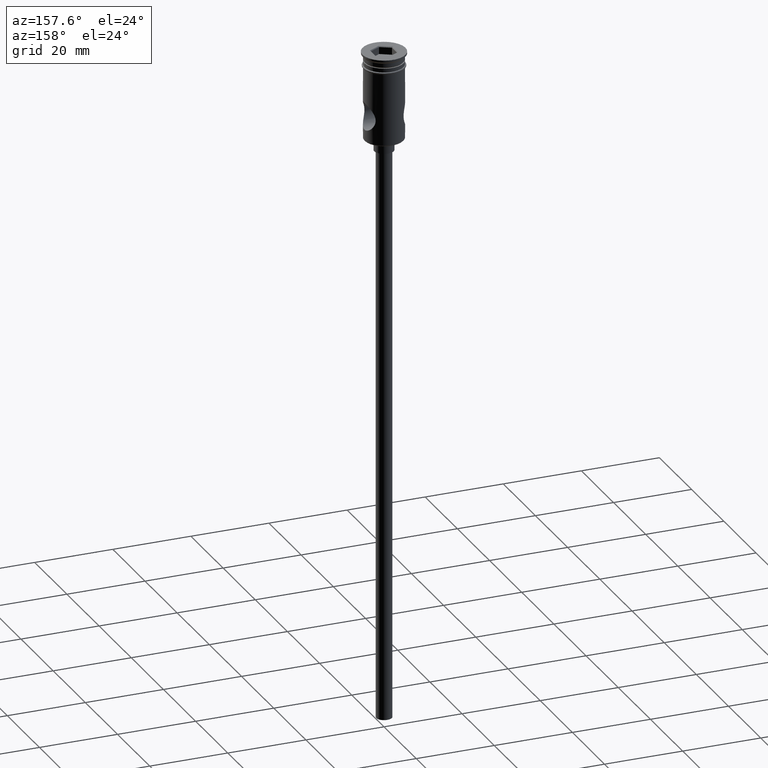
[diagram: clean part render]
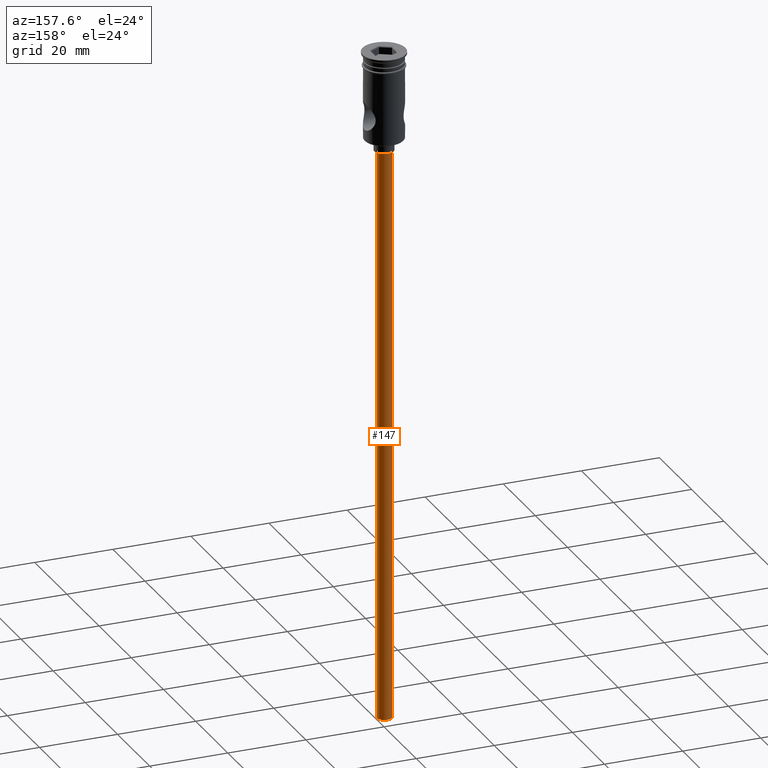
[diagram: same view with one face highlighted and labeled with its STEP entity id]
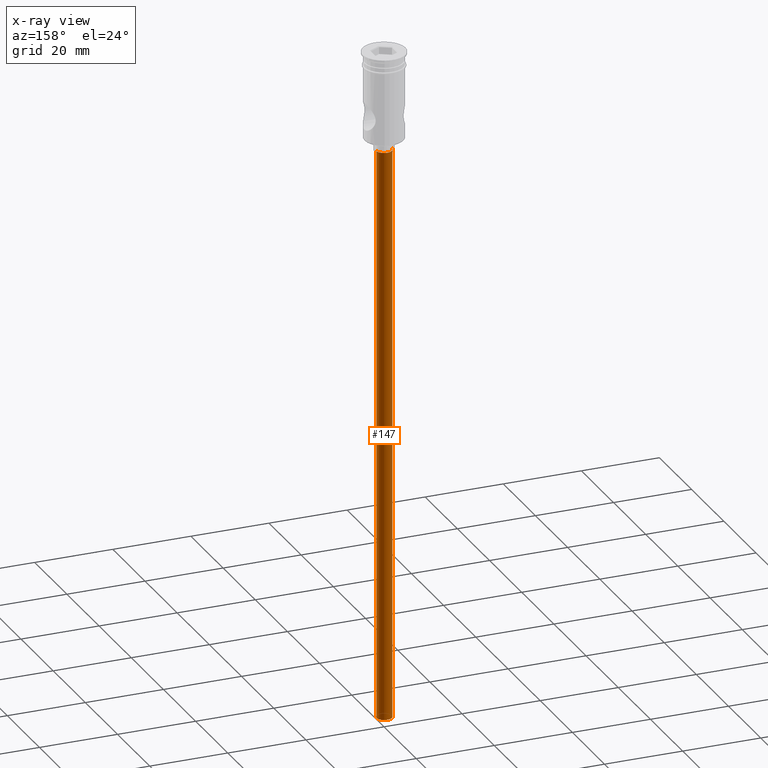
[diagram: x-ray of the same camera — body ghosted, the highlighted face saturated]
A machine part, auxiliary view. The second image highlights one B-rep face of the part: STEP entity #147.
The next image is the same camera in x-ray: the body ghosted, the highlighted face saturated — about 0% of this face is hidden behind the body in this view.
In plain terms, the highlighted cylindrical surface (edge-blend (fillet) strip) has radius 2 mm, axis along (-0, -0, 1).
Its self-contained STEP definition (entity closure, byte-faithful):
#20 = EDGE_CURVE ( 'NONE', #835, #301, #1434, .T. ) ;
#41 = DIRECTION ( 'NONE',  ( -0.000000000000000000, -0.000000000000000000, 1.000000000000000000 ) ) ;
#96 = LINE ( 'NONE', #1119, #300 ) ;
#147 = ADVANCED_FACE ( 'NONE', ( #698 ), #1362, .T. ) ;
#223 = DIRECTION ( 'NONE',  ( -1.000000000000000000, 0.000000000000000000, 0.000000000000000000 ) ) ;
#224 = CARTESIAN_POINT ( 'NONE',  ( -2.000000000000000000, 2.449293598294706414E-16, -172.5000000000000000 ) ) ;
#227 = ORIENTED_EDGE ( 'NONE', *, *, #20, .T. ) ;
#284 = DIRECTION ( 'NONE',  ( -0.000000000000000000, -0.000000000000000000, 1.000000000000000000 ) ) ;
#300 = VECTOR ( 'NONE', #1352, 1000.000000000000000 ) ;
#301 = VERTEX_POINT ( 'NONE', #471 ) ;
#402 = LINE ( 'NONE', #839, #688 ) ;
#436 = VERTEX_POINT ( 'NONE', #224 ) ;
#445 = AXIS2_PLACEMENT_3D ( 'NONE', #916, #41, #1353 ) ;
#471 = CARTESIAN_POINT ( 'NONE',  ( 2.000000000000000000, 0.000000000000000000, -25.50000000000000000 ) ) ;
#482 = ORIENTED_EDGE ( 'NONE', *, *, #1157, .T. ) ;
#546 = VERTEX_POINT ( 'NONE', #914 ) ;
#688 = VECTOR ( 'NONE', #284, 1000.000000000000000 ) ;
#698 = FACE_OUTER_BOUND ( 'NONE', #1205, .T. ) ;
#732 = ORIENTED_EDGE ( 'NONE', *, *, #1086, .F. ) ;
#784 = CARTESIAN_POINT ( 'NONE',  ( 0.000000000000000000, 0.000000000000000000, -172.5000000000000000 ) ) ;
#835 = VERTEX_POINT ( 'NONE', #1230 ) ;
#839 = CARTESIAN_POINT ( 'NONE',  ( 2.000000000000000000, 0.000000000000000000, -172.5000000000000000 ) ) ;
#914 = CARTESIAN_POINT ( 'NONE',  ( 2.000000000000000000, 0.000000000000000000, -172.5000000000000000 ) ) ;
#916 = CARTESIAN_POINT ( 'NONE',  ( 0.000000000000000000, 0.000000000000000000, -172.5000000000000000 ) ) ;
#966 = EDGE_CURVE ( 'NONE', #436, #546, #1441, .T. ) ;
#988 = AXIS2_PLACEMENT_3D ( 'NONE', #784, #1457, #223 ) ;
#1086 = EDGE_CURVE ( 'NONE', #546, #301, #402, .T. ) ;
#1108 = ORIENTED_EDGE ( 'NONE', *, *, #966, .F. ) ;
#1119 = CARTESIAN_POINT ( 'NONE',  ( -2.000000000000000000, 2.449293598294706414E-16, -172.5000000000000000 ) ) ;
#1157 = EDGE_CURVE ( 'NONE', #436, #835, #96, .T. ) ;
#1197 = CARTESIAN_POINT ( 'NONE',  ( 0.000000000000000000, 0.000000000000000000, -25.50000000000000000 ) ) ;
#1205 = EDGE_LOOP ( 'NONE', ( #1108, #482, #227, #732 ) ) ;
#1230 = CARTESIAN_POINT ( 'NONE',  ( -2.000000000000000000, 2.449293598294706414E-16, -25.50000000000000000 ) ) ;
#1352 = DIRECTION ( 'NONE',  ( -0.000000000000000000, -0.000000000000000000, 1.000000000000000000 ) ) ;
#1353 = DIRECTION ( 'NONE',  ( 1.000000000000000000, 0.000000000000000000, 0.000000000000000000 ) ) ;
#1362 = CYLINDRICAL_SURFACE ( 'NONE', #445, 2.000000000000000000 ) ;
#1405 = AXIS2_PLACEMENT_3D ( 'NONE', #1197, #1415, #1446 ) ;
#1415 = DIRECTION ( 'NONE',  ( 0.000000000000000000, 0.000000000000000000, -1.000000000000000000 ) ) ;
#1434 = CIRCLE ( 'NONE', #1405, 2.000000000000000000 ) ;
#1441 = CIRCLE ( 'NONE', #988, 2.000000000000000000 ) ;
#1446 = DIRECTION ( 'NONE',  ( -1.000000000000000000, 0.000000000000000000, 0.000000000000000000 ) ) ;
#1457 = DIRECTION ( 'NONE',  ( 0.000000000000000000, 0.000000000000000000, -1.000000000000000000 ) ) ;